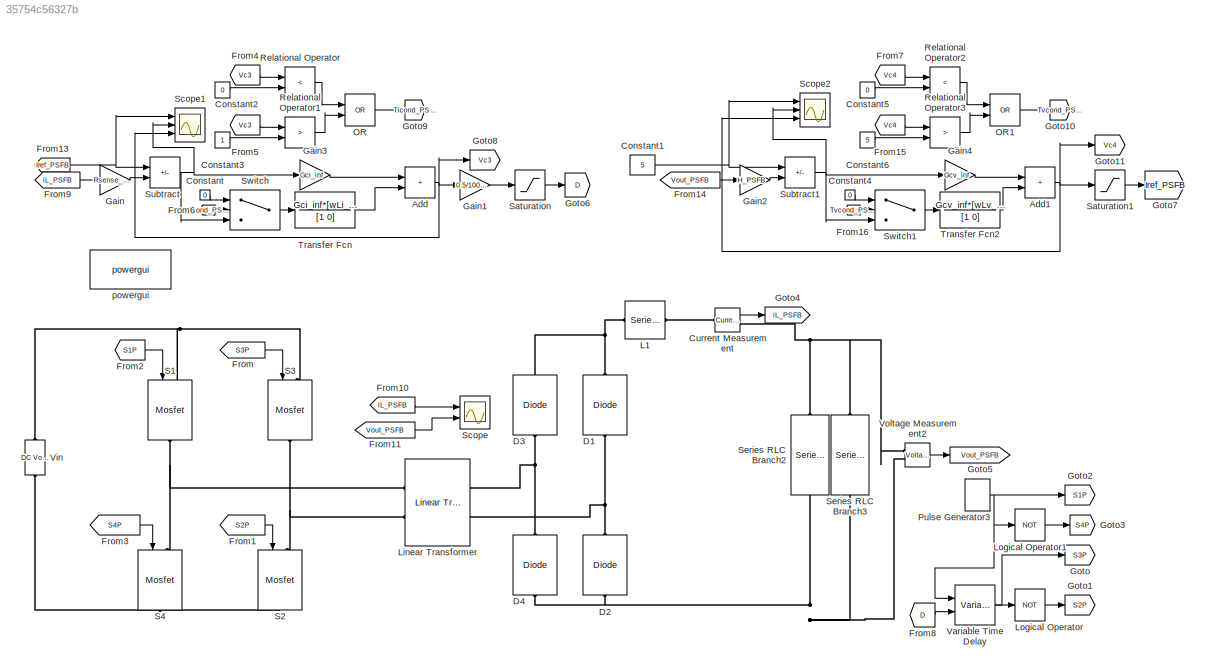
MODEL slx_35754c56327b
KIND model
CONFIG AbsTol = auto
CONFIG EnableMultiTasking = off
CONFIG FixedStep = 1e-9
CONFIG MaxStep = auto
CONFIG MinStep = auto
CONFIG RelTol = 1e-3
CONFIG SampleTimeConstraint = Unconstrained
CONFIG SolverName = ode4
CONFIG StartTime = 0.0
CONFIG StopTime = 0.1
BLOCK [Sum] Add
  IconShape = rectangular
  Ports = [2, 1]
BLOCK [Sum] Add1
  IconShape = rectangular
  Ports = [2, 1]
BLOCK [Constant] Constant
  Value = 0
BLOCK [Constant] Constant1
  Value = 5
BLOCK [Constant] Constant2
  Value = 0
BLOCK [Constant] Constant3
BLOCK [Constant] Constant4
  Value = 0
BLOCK [Constant] Constant5
  Value = 0
BLOCK [Constant] Constant6
  Value = 5
BLOCK [Reference] Current Measurement  REF=spsCurrentMeasurementLib/Current Measurement
  Ports = [0, 1, 0, 0, 0, 1, 1]
  SourceBlock = spsCurrentMeasurementLib/Current Measurement
  SourceProductBaseCode = PS
  SourceType = Current Measurement
  UserDataPersistent = on
BLOCK [Reference] D1  REF=spsDiodeLib/Diode
  NameLocation = right
  Ports = [0, 0, 0, 0, 0, 1, 1]
  SourceBlock = spsDiodeLib/Diode
  SourceProductBaseCode = PS
  SourceType = Diode
BLOCK [Reference] D2  REF=spsDiodeLib/Diode
  NameLocation = left
  Ports = [0, 0, 0, 0, 0, 1, 1]
  SourceBlock = spsDiodeLib/Diode
  SourceProductBaseCode = PS
  SourceType = Diode
BLOCK [Reference] D3  REF=spsDiodeLib/Diode
  NameLocation = right
  Ports = [0, 0, 0, 0, 0, 1, 1]
  SourceBlock = spsDiodeLib/Diode
  SourceProductBaseCode = PS
  SourceType = Diode
BLOCK [Reference] D4  REF=spsDiodeLib/Diode
  NameLocation = left
  Ports = [0, 0, 0, 0, 0, 1, 1]
  SourceBlock = spsDiodeLib/Diode
  SourceProductBaseCode = PS
  SourceType = Diode
BLOCK [From] From
  GotoTag = S3P
BLOCK [From] From1
  GotoTag = S2P
BLOCK [From] From10
  GotoTag = iL_PSFB
BLOCK [From] From11
  GotoTag = Vout_PSFB
BLOCK [From] From13
  GotoTag = Iref_PSFB
BLOCK [From] From14
  GotoTag = Vout_PSFB
BLOCK [From] From15
  GotoTag = Vc4
BLOCK [From] From16
  GotoTag = Tvcond_PSFB
BLOCK [From] From2
  GotoTag = S1P
BLOCK [From] From3
  GotoTag = S4P
BLOCK [From] From4
  GotoTag = Vc3
BLOCK [From] From5
  GotoTag = Vc3
BLOCK [From] From6
  GotoTag = Ticond_PSFB
BLOCK [From] From7
  GotoTag = Vc4
BLOCK [From] From8
  GotoTag = D
BLOCK [From] From9
  GotoTag = iL_PSFB
BLOCK [Gain] Gain
  Gain = Rsense_PSFB
BLOCK [Gain] Gain1
  Gain = 0.5/100e3
BLOCK [Gain] Gain2
  Gain = H_PSFB
BLOCK [Gain] Gain3
  Gain = Gci_inf
BLOCK [Gain] Gain4
  Gain = Gcv_inf
BLOCK [Goto] Goto
  GotoTag = S3P
BLOCK [Goto] Goto1
  GotoTag = S2P
BLOCK [Goto] Goto10
  GotoTag = Tvcond_PSFB
BLOCK [Goto] Goto11
  GotoTag = Vc4
BLOCK [Goto] Goto2
  GotoTag = S1P
BLOCK [Goto] Goto3
  GotoTag = S4P
BLOCK [Goto] Goto4
  GotoTag = iL_PSFB
BLOCK [Goto] Goto5
  GotoTag = Vout_PSFB
BLOCK [Goto] Goto6
  GotoTag = D
BLOCK [Goto] Goto7
  GotoTag = Iref_PSFB
BLOCK [Goto] Goto8
  GotoTag = Vc3
BLOCK [Goto] Goto9
  GotoTag = Ticond_PSFB
BLOCK [Reference] L1  REF=spsSeriesRLCBranchLib/Series RLC Branch
  Ports = [0, 0, 0, 0, 0, 1, 1]
  SourceBlock = spsSeriesRLCBranchLib/Series RLC Branch
  SourceProductBaseCode = PS
  SourceType = Series RLC Branch
BLOCK [Reference] Linear Transformer  REF=spsLinearTransformerLib/Linear Transformer
  Ports = [0, 0, 0, 0, 0, 2, 2]
  SourceBlock = spsLinearTransformerLib/Linear Transformer
  SourceProductBaseCode = PS
  SourceType = Linear Transformer
BLOCK [Logic] Logical Operator
  AllPortsSameDT = off
  Operator = NOT
  OutDataTypeStr = boolean
  Ports = [1, 1]
BLOCK [Logic] Logical Operator1
  AllPortsSameDT = off
  Operator = NOT
  OutDataTypeStr = boolean
  Ports = [1, 1]
BLOCK [Logic] OR
  AllPortsSameDT = off
  IconShape = distinctive
  Operator = OR
  OutDataTypeStr = boolean
  Ports = [2, 1]
BLOCK [Logic] OR1
  AllPortsSameDT = off
  IconShape = distinctive
  Operator = OR
  OutDataTypeStr = boolean
  Ports = [2, 1]
BLOCK [DiscretePulseGenerator] Pulse Generator3
  Amplitude = 15
  Period = 10e-6
  Ports = [0, 1]
  PulseType = Time based
  PulseWidth = 50
BLOCK [RelationalOperator] Relational Operator
  InputSameDT = off
  Operator = <
  OutDataTypeStr = boolean
  Ports = [2, 1]
  RndMeth = Simplest
BLOCK [RelationalOperator] Relational Operator1
  InputSameDT = off
  Operator = >
  OutDataTypeStr = boolean
  Ports = [2, 1]
  RndMeth = Simplest
BLOCK [RelationalOperator] Relational Operator2
  InputSameDT = off
  Operator = <
  OutDataTypeStr = boolean
  Ports = [2, 1]
  RndMeth = Simplest
BLOCK [RelationalOperator] Relational Operator3
  InputSameDT = off
  Operator = >
  OutDataTypeStr = boolean
  Ports = [2, 1]
  RndMeth = Simplest
BLOCK [Reference] S1  REF=spsMosfetLib/Mosfet
  NameLocation = left
  Ports = [1, 0, 0, 0, 0, 1, 1]
  SourceBlock = spsMosfetLib/Mosfet
  SourceProductBaseCode = PS
  SourceType = Mosfet
BLOCK [Reference] S2  REF=spsMosfetLib/Mosfet
  NameLocation = left
  Ports = [1, 0, 0, 0, 0, 1, 1]
  SourceBlock = spsMosfetLib/Mosfet
  SourceProductBaseCode = PS
  SourceType = Mosfet
BLOCK [Reference] S3  REF=spsMosfetLib/Mosfet
  NameLocation = left
  Ports = [1, 0, 0, 0, 0, 1, 1]
  SourceBlock = spsMosfetLib/Mosfet
  SourceProductBaseCode = PS
  SourceType = Mosfet
BLOCK [Reference] S4  REF=spsMosfetLib/Mosfet
  NameLocation = left
  Ports = [1, 0, 0, 0, 0, 1, 1]
  SourceBlock = spsMosfetLib/Mosfet
  SourceProductBaseCode = PS
  SourceType = Mosfet
BLOCK [Saturate] Saturation
  LowerLimit = 0
  UpperLimit = 5e-6
BLOCK [Saturate] Saturation1
  LowerLimit = 0
  UpperLimit = 5
BLOCK [Scope] Scope
  Floating = off
  NumInputPorts = 2
  Ports = [2]
  ScopeSpecificationString = Simulink.scopes.TimeScopeBlockCfg('CurrentConfiguration', extmgr.ConfigurationSet(extmgr.Configuration('Core','General UI',true),extmgr.Configuration('Core','Source UI',true),extmgr.Configuration('Sources','WiredSimulink',true,'DataLoggingVariableName','ScopeData1'),extmgr.Configuration('Visuals','Time Domain',true,'SerializedDisplays',{struct('MinYLimReal','-0.74175','MaxYLimReal','6.67574','YLab...<+2098ch>
BLOCK [Scope] Scope1
  Floating = off
  NumInputPorts = 3
  Ports = [3]
  ScopeSpecificationString = Simulink.scopes.TimeScopeBlockCfg('CurrentConfiguration', extmgr.ConfigurationSet(extmgr.Configuration('Core','General UI',true),extmgr.Configuration('Core','Source UI',true),extmgr.Configuration('Sources','WiredSimulink',true,'DataLoggingVariableName','ScopeData1'),extmgr.Configuration('Visuals','Time Domain',true,'SerializedDisplays',{struct('MinYLimReal','0.00837','MaxYLimReal','1.69051','YLabe...<+2834ch>
BLOCK [Scope] Scope2
  Floating = off
  NumInputPorts = 3
  Ports = [3]
  ScopeSpecificationString = Simulink.scopes.TimeScopeBlockCfg('CurrentConfiguration', extmgr.ConfigurationSet(extmgr.Configuration('Core','General UI',true),extmgr.Configuration('Core','Source UI',true),extmgr.Configuration('Sources','WiredSimulink',true,'DataLoggingVariableName','ScopeData2'),extmgr.Configuration('Visuals','Time Domain',true,'SerializedDisplays',{struct('MinYLimReal','4.00000','MaxYLimReal','6.00000','YLabe...<+2833ch>
BLOCK [Reference] Series RLC Branch2  REF=spsSeriesRLCBranchLib/Series RLC Branch
  NameLocation = left
  Ports = [0, 0, 0, 0, 0, 1, 1]
  SourceBlock = spsSeriesRLCBranchLib/Series RLC Branch
  SourceProductBaseCode = PS
  SourceType = Series RLC Branch
BLOCK [Reference] Series RLC Branch3  REF=spsSeriesRLCBranchLib/Series RLC Branch
  NameLocation = left
  Ports = [0, 0, 0, 0, 0, 1, 1]
  SourceBlock = spsSeriesRLCBranchLib/Series RLC Branch
  SourceProductBaseCode = PS
  SourceType = Series RLC Branch
BLOCK [Sum] Subtract
  IconShape = rectangular
  Inputs = +-
  NameLocation = top
  Ports = [2, 1]
BLOCK [Sum] Subtract1
  IconShape = rectangular
  Inputs = +-
  NameLocation = top
  Ports = [2, 1]
BLOCK [Switch] Switch
  Criteria = u2 > Threshold
  InputSameDT = off
  SaturateOnIntegerOverflow = off
BLOCK [Switch] Switch1
  Criteria = u2 > Threshold
  InputSameDT = off
  SaturateOnIntegerOverflow = off
BLOCK [TransferFcn] Transfer Fcn
  Denominator = [1 0]
  Numerator = Gci_inf*[wLi_PSFB]
BLOCK [TransferFcn] Transfer Fcn2
  Denominator = [1 0]
  Numerator = Gcv_inf*[wLv_PSFB]
BLOCK [VariableTransportDelay] Variable Time Delay
  MaximumDelay = 5.1e-6
  Ports = [2, 1]
BLOCK [Reference] Vin  REF=spsDCVoltageSourceLib/DC Voltage Source
  NameLocation = right
  Ports = [0, 0, 0, 0, 0, 1, 1]
  SourceBlock = spsDCVoltageSourceLib/DC Voltage Source
  SourceProductBaseCode = PS
  SourceType = DC Voltage Source
BLOCK [Reference] Voltage Measurement2  REF=spsVoltageMeasurementLib/Voltage Measurement
  Ports = [0, 1, 0, 0, 0, 2]
  SourceBlock = spsVoltageMeasurementLib/Voltage Measurement
  SourceProductBaseCode = PS
  SourceType = Voltage Measurement
  UserDataPersistent = on
BLOCK [Reference] powergui  REF=spspowerguiLib/powergui
  Ports = []
  Priority = 1
  SourceBlock = spspowerguiLib/powergui
  SourceProductBaseCode = PS
  SourceType = PSB option menu block
NET Add1:1 -> Goto11:1, Saturation1:1, Scope2:3
NET Add:1 -> Gain1:1, Goto8:1, Scope1:3
NET Constant1:1 -> Scope2:1, Subtract1:1
LINE Constant2:1 -> Relational Operator:2
LINE Constant3:1 -> Relational Operator1:2
LINE Constant4:1 -> Switch1:1
LINE Constant5:1 -> Relational Operator2:2
LINE Constant6:1 -> Relational Operator3:2
LINE Constant:1 -> Switch:1
LINE Current Measurement:1 -> Goto4:1
LINE From10:1 -> Scope:1
LINE From11:1 -> Scope:2
NET From13:1 -> Scope1:1, Subtract:1
LINE From14:1 -> Gain2:1
LINE From15:1 -> Relational Operator3:1
LINE From16:1 -> Switch1:2
LINE From1:1 -> S2:1
LINE From2:1 -> S1:1
LINE From3:1 -> S4:1
LINE From4:1 -> Relational Operator:1
LINE From5:1 -> Relational Operator1:1
LINE From6:1 -> Switch:2
LINE From7:1 -> Relational Operator2:1
LINE From8:1 -> Variable Time Delay:2
LINE From9:1 -> Gain:1
LINE From:1 -> S3:1
LINE Gain1:1 -> Saturation:1
LINE Gain2:1 -> Subtract1:2
LINE Gain3:1 -> Add:1
LINE Gain4:1 -> Add1:1
LINE Gain:1 -> Subtract:2
LINE Logical Operator1:1 -> Goto3:1
LINE Logical Operator:1 -> Goto1:1
LINE OR1:1 -> Goto10:1
LINE OR:1 -> Goto9:1
NET Pulse Generator3:1 -> Goto2:1, Logical Operator1:1, Variable Time Delay:1
LINE Relational Operator1:1 -> OR:2
LINE Relational Operator2:1 -> OR1:1
LINE Relational Operator3:1 -> OR1:2
LINE Relational Operator:1 -> OR:1
LINE Saturation1:1 -> Goto7:1
LINE Saturation:1 -> Goto6:1
NET Subtract1:1 -> Gain4:1, Scope2:2, Switch1:3
NET Subtract:1 -> Gain3:1, Scope1:2, Switch:3
LINE Switch1:1 -> Transfer Fcn2:1
LINE Switch:1 -> Transfer Fcn:1
LINE Transfer Fcn2:1 -> Add1:2
LINE Transfer Fcn:1 -> Add:2
NET Variable Time Delay:1 -> Goto:1, Logical Operator:1
LINE Voltage Measurement2:1 -> Goto5:1
PLINE Current Measurement:LConn1 -- L1:RConn1
PNET net1: Current Measurement:RConn1 -- Series RLC Branch2:LConn1 -- Series RLC Branch3:LConn1 -- Voltage Measurement2:LConn1
PNET net2: D1:LConn1 -- D2:RConn1 -- Linear Transformer:RConn2
PNET net3: D1:RConn1 -- D3:RConn1 -- L1:LConn1
PNET net4: D2:LConn1 -- D4:LConn1 -- Series RLC Branch2:RConn1 -- Series RLC Branch3:RConn1 -- Voltage Measurement2:LConn2
PNET net5: D3:LConn1 -- D4:RConn1 -- Linear Transformer:RConn1
PNET net6: Linear Transformer:LConn1 -- S1:RConn1 -- S4:LConn1
PNET net7: Linear Transformer:LConn2 -- S2:LConn1 -- S3:RConn1
PNET net8: S1:LConn1 -- S3:LConn1 -- Vin:RConn1
PNET net9: S2:RConn1 -- S4:RConn1 -- Vin:LConn1
note: NET lines group one-source signal fan-out (src -> all destinations, sorted); 1:1 wires keep LINE; PNET lines group multi-terminal physical nets as a canonical sorted terminal list (undirected conserving connections); 2-terminal nets keep the pairwise PLINE form
